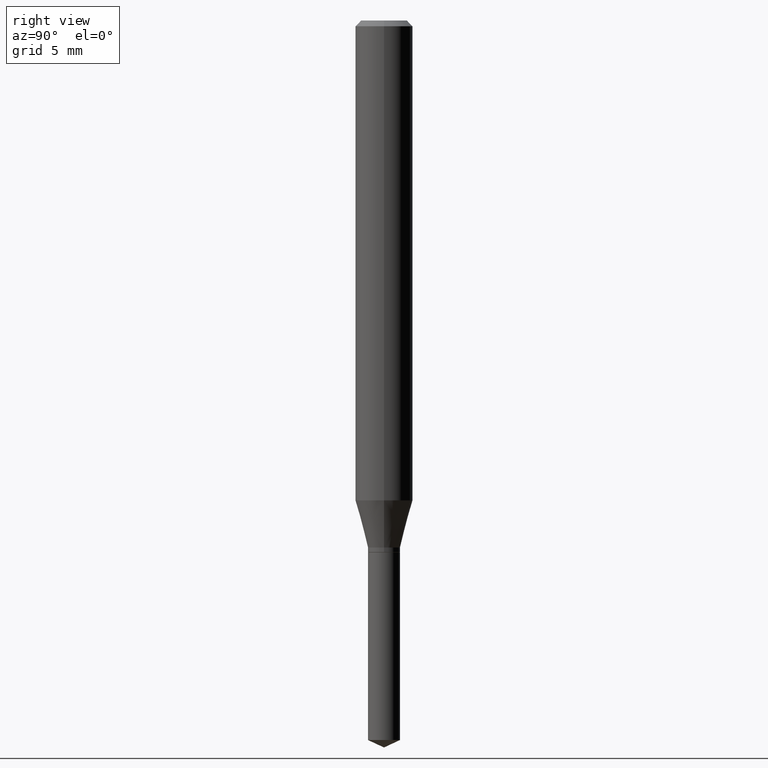
[diagram: clean part render]
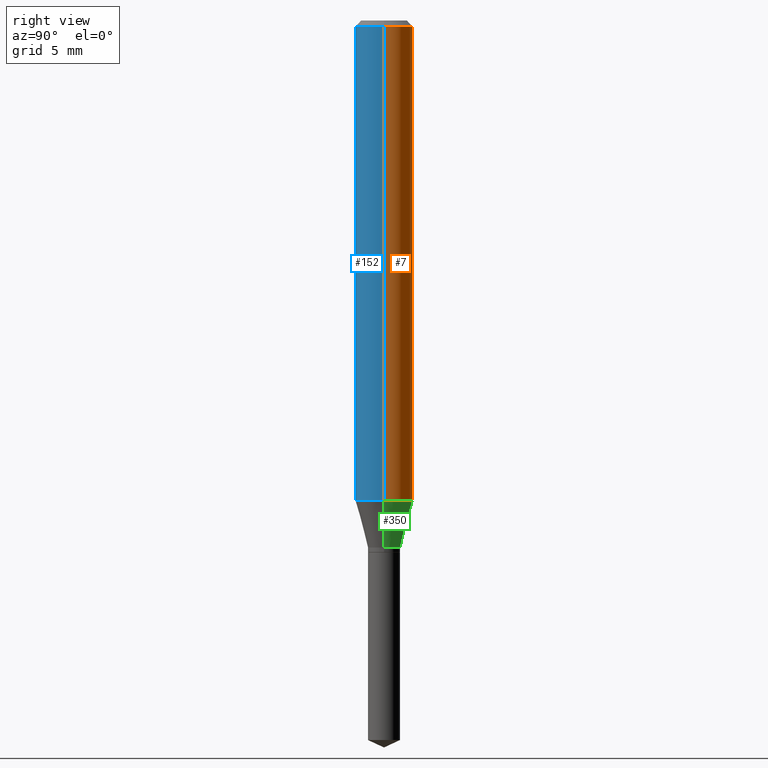
[diagram: same view with three faces highlighted in distinct colors, each labeled with its STEP entity id]
A machine part, right view with three faces highlighted in distinct colors.
Their STEP definitions:

[orange] entity #7 — the highlighted cylindrical surface (edge-blend (fillet) strip) has radius 1.4999 mm, axis along (-0, 0, 1).
#5 = CARTESIAN_POINT ( 'NONE',  ( -0.05905000000000006077, 4.195754854663395916E-16, -2.904631170795524694E-30 ) ) ;
#7 = ADVANCED_FACE ( 'NONE', ( #118 ), #80, .T. ) ;
#16 = CARTESIAN_POINT ( 'NONE',  ( 2.415063507530197396E-29, -3.448070630603002833E-15, -0.9875666790032088249 ) ) ;
#30 = CARTESIAN_POINT ( 'NONE',  ( -0.05904999999999999832, -1.325077027141029999E-15, -0.01181000000000007218 ) ) ;
#38 = LINE ( 'NONE', #5, #69 ) ;
#69 = VECTOR ( 'NONE', #424, 39.37007874015748143 ) ;
#71 = EDGE_LOOP ( 'NONE', ( #255, #432, #296, #396 ) ) ;
#73 = EDGE_CURVE ( 'NONE', #200, #377, #310, .T. ) ;
#80 = CYLINDRICAL_SURFACE ( 'NONE', #430, 0.05905000000000006077 ) ;
#106 = AXIS2_PLACEMENT_3D ( 'NONE', #426, #390, #196 ) ;
#109 = CARTESIAN_POINT ( 'NONE',  ( -0.05905000000000011628, -3.028495145136662552E-15, -0.9875666790032088249 ) ) ;
#118 = FACE_OUTER_BOUND ( 'NONE', #71, .T. ) ;
#168 = DIRECTION ( 'NONE',  ( -2.445468806185136597E-29, 3.491481338843145583E-15, 1.000000000000000000 ) ) ;
#173 = CARTESIAN_POINT ( 'NONE',  ( 0.05904999999999999832, -4.535783407291118600E-16, -0.01181000000000007218 ) ) ;
#178 = VECTOR ( 'NONE', #271, 39.37007874015748143 ) ;
#196 = DIRECTION ( 'NONE',  ( 1.000000000000000000, -6.982962677686266711E-15, 0.000000000000000000 ) ) ;
#200 = VERTEX_POINT ( 'NONE', #173 ) ;
#239 = AXIS2_PLACEMENT_3D ( 'NONE', #16, #168, #471 ) ;
#243 = EDGE_CURVE ( 'NONE', #380, #462, #384, .T. ) ;
#255 = ORIENTED_EDGE ( 'NONE', *, *, #243, .T. ) ;
#271 = DIRECTION ( 'NONE',  ( -2.445468806185136877E-29, 3.491481338843145188E-15, 1.000000000000000000 ) ) ;
#292 = CARTESIAN_POINT ( 'NONE',  ( 0.05905000000000011628, -3.860414576720377754E-15, -0.9875666790032088249 ) ) ;
#296 = ORIENTED_EDGE ( 'NONE', *, *, #73, .F. ) ;
#310 = CIRCLE ( 'NONE', #106, 0.05904999999999999832 ) ;
#352 = LINE ( 'NONE', #355, #178 ) ;
#355 = CARTESIAN_POINT ( 'NONE',  ( 0.05905000000000006077, -4.123439461173744764E-16, 2.879382386107503023E-30 ) ) ;
#377 = VERTEX_POINT ( 'NONE', #30 ) ;
#380 = VERTEX_POINT ( 'NONE', #292 ) ;
#384 = CIRCLE ( 'NONE', #239, 0.05905000000000011628 ) ;
#388 = DIRECTION ( 'NONE',  ( -2.445468806185136597E-29, 3.491481338843145583E-15, 1.000000000000000000 ) ) ;
#390 = DIRECTION ( 'NONE',  ( -2.445468806185136597E-29, 3.491481338843145583E-15, 1.000000000000000000 ) ) ;
#394 = DIRECTION ( 'NONE',  ( 1.000000000000000000, -6.982962677686266711E-15, 4.876176775795935793E-29 ) ) ;
#396 = ORIENTED_EDGE ( 'NONE', *, *, #481, .F. ) ;
#421 = CARTESIAN_POINT ( 'NONE',  ( 0.000000000000000000, 0.000000000000000000, 0.000000000000000000 ) ) ;
#424 = DIRECTION ( 'NONE',  ( -2.445468806185136877E-29, 3.491481338843145188E-15, 1.000000000000000000 ) ) ;
#426 = CARTESIAN_POINT ( 'NONE',  ( 2.888098660104664204E-31, -4.123439461173780263E-17, -0.01181000000000007218 ) ) ;
#430 = AXIS2_PLACEMENT_3D ( 'NONE', #421, #388, #394 ) ;
#432 = ORIENTED_EDGE ( 'NONE', *, *, #475, .T. ) ;
#462 = VERTEX_POINT ( 'NONE', #109 ) ;
#471 = DIRECTION ( 'NONE',  ( 1.000000000000000000, -6.982962677686266711E-15, 0.000000000000000000 ) ) ;
#475 = EDGE_CURVE ( 'NONE', #462, #377, #38, .T. ) ;
#481 = EDGE_CURVE ( 'NONE', #380, #200, #352, .T. ) ;

[blue] entity #152 — the highlighted cylindrical surface (edge-blend (fillet) strip) has radius 1.4999 mm, axis along (-0, 0, 1).
#4 = CIRCLE ( 'NONE', #400, 0.05905000000000011628 ) ;
#5 = CARTESIAN_POINT ( 'NONE',  ( -0.05905000000000006077, 4.195754854663395916E-16, -2.904631170795524694E-30 ) ) ;
#30 = CARTESIAN_POINT ( 'NONE',  ( -0.05904999999999999832, -1.325077027141029999E-15, -0.01181000000000007218 ) ) ;
#33 = ORIENTED_EDGE ( 'NONE', *, *, #457, .T. ) ;
#38 = LINE ( 'NONE', #5, #69 ) ;
#63 = ORIENTED_EDGE ( 'NONE', *, *, #317, .F. ) ;
#69 = VECTOR ( 'NONE', #424, 39.37007874015748143 ) ;
#87 = DIRECTION ( 'NONE',  ( -2.445468806185136597E-29, 3.491481338843145583E-15, 1.000000000000000000 ) ) ;
#96 = CARTESIAN_POINT ( 'NONE',  ( 0.000000000000000000, 0.000000000000000000, 0.000000000000000000 ) ) ;
#109 = CARTESIAN_POINT ( 'NONE',  ( -0.05905000000000011628, -3.028495145136662552E-15, -0.9875666790032088249 ) ) ;
#152 = ADVANCED_FACE ( 'NONE', ( #434 ), #433, .T. ) ;
#173 = CARTESIAN_POINT ( 'NONE',  ( 0.05904999999999999832, -4.535783407291118600E-16, -0.01181000000000007218 ) ) ;
#178 = VECTOR ( 'NONE', #271, 39.37007874015748143 ) ;
#185 = ORIENTED_EDGE ( 'NONE', *, *, #475, .F. ) ;
#200 = VERTEX_POINT ( 'NONE', #173 ) ;
#224 = CARTESIAN_POINT ( 'NONE',  ( 2.415063507530197396E-29, -3.448070630603002833E-15, -0.9875666790032088249 ) ) ;
#225 = ORIENTED_EDGE ( 'NONE', *, *, #481, .T. ) ;
#250 = DIRECTION ( 'NONE',  ( 1.000000000000000000, -6.982962677686266711E-15, 4.876176775795935793E-29 ) ) ;
#259 = AXIS2_PLACEMENT_3D ( 'NONE', #448, #408, #477 ) ;
#271 = DIRECTION ( 'NONE',  ( -2.445468806185136877E-29, 3.491481338843145188E-15, 1.000000000000000000 ) ) ;
#292 = CARTESIAN_POINT ( 'NONE',  ( 0.05905000000000011628, -3.860414576720377754E-15, -0.9875666790032088249 ) ) ;
#302 = CIRCLE ( 'NONE', #259, 0.05904999999999999832 ) ;
#317 = EDGE_CURVE ( 'NONE', #377, #200, #302, .T. ) ;
#352 = LINE ( 'NONE', #355, #178 ) ;
#355 = CARTESIAN_POINT ( 'NONE',  ( 0.05905000000000006077, -4.123439461173744764E-16, 2.879382386107503023E-30 ) ) ;
#362 = EDGE_LOOP ( 'NONE', ( #185, #33, #225, #63 ) ) ;
#377 = VERTEX_POINT ( 'NONE', #30 ) ;
#378 = DIRECTION ( 'NONE',  ( -2.445468806185136597E-29, 3.491481338843145583E-15, 1.000000000000000000 ) ) ;
#380 = VERTEX_POINT ( 'NONE', #292 ) ;
#400 = AXIS2_PLACEMENT_3D ( 'NONE', #224, #378, #454 ) ;
#408 = DIRECTION ( 'NONE',  ( -2.445468806185136597E-29, 3.491481338843145583E-15, 1.000000000000000000 ) ) ;
#422 = AXIS2_PLACEMENT_3D ( 'NONE', #96, #87, #250 ) ;
#424 = DIRECTION ( 'NONE',  ( -2.445468806185136877E-29, 3.491481338843145188E-15, 1.000000000000000000 ) ) ;
#433 = CYLINDRICAL_SURFACE ( 'NONE', #422, 0.05905000000000006077 ) ;
#434 = FACE_OUTER_BOUND ( 'NONE', #362, .T. ) ;
#448 = CARTESIAN_POINT ( 'NONE',  ( 2.888098660104664204E-31, -4.123439461173780263E-17, -0.01181000000000007218 ) ) ;
#454 = DIRECTION ( 'NONE',  ( 1.000000000000000000, -6.982962677686266711E-15, 0.000000000000000000 ) ) ;
#457 = EDGE_CURVE ( 'NONE', #462, #380, #4, .T. ) ;
#462 = VERTEX_POINT ( 'NONE', #109 ) ;
#475 = EDGE_CURVE ( 'NONE', #462, #377, #38, .T. ) ;
#477 = DIRECTION ( 'NONE',  ( 1.000000000000000000, -6.982962677686266711E-15, 0.000000000000000000 ) ) ;
#481 = EDGE_CURVE ( 'NONE', #380, #200, #352, .T. ) ;

[green] entity #350 — the highlighted conical surface has half-angle 15 deg.
#16 = CARTESIAN_POINT ( 'NONE',  ( 2.415063507530197396E-29, -3.448070630603002833E-15, -0.9875666790032088249 ) ) ;
#32 = CARTESIAN_POINT ( 'NONE',  ( 0.03305000000000000299, -4.017647576606806874E-15, -1.084600000000000009 ) ) ;
#34 = DIRECTION ( 'NONE',  ( -2.445468806185136597E-29, 3.491481338843145583E-15, 1.000000000000000000 ) ) ;
#53 = AXIS2_PLACEMENT_3D ( 'NONE', #139, #218, #294 ) ;
#72 = DIRECTION ( 'NONE',  ( 0.2588190451025211281, 1.565188264969622954E-15, 0.9659258262890679791 ) ) ;
#103 = CARTESIAN_POINT ( 'NONE',  ( 2.652355467188399034E-29, -3.786860660109275425E-15, -1.084600000000000009 ) ) ;
#109 = CARTESIAN_POINT ( 'NONE',  ( -0.05905000000000011628, -3.028495145136662552E-15, -0.9875666790032088249 ) ) ;
#128 = LINE ( 'NONE', #436, #383 ) ;
#134 = CARTESIAN_POINT ( 'NONE',  ( -0.03305000000000000299, -3.568436248233125067E-15, -1.084600000000000009 ) ) ;
#138 = AXIS2_PLACEMENT_3D ( 'NONE', #103, #34, #176 ) ;
#139 = CARTESIAN_POINT ( 'NONE',  ( 2.652355467188399034E-29, -3.786860660109275425E-15, -1.084600000000000009 ) ) ;
#163 = VERTEX_POINT ( 'NONE', #134 ) ;
#168 = DIRECTION ( 'NONE',  ( -2.445468806185136597E-29, 3.491481338843145583E-15, 1.000000000000000000 ) ) ;
#176 = DIRECTION ( 'NONE',  ( 1.000000000000000000, -6.982962677686269077E-15, 0.000000000000000000 ) ) ;
#183 = EDGE_LOOP ( 'NONE', ( #455, #337, #217, #409 ) ) ;
#217 = ORIENTED_EDGE ( 'NONE', *, *, #243, .F. ) ;
#218 = DIRECTION ( 'NONE',  ( -2.445468806185136597E-29, 3.491481338843145583E-15, 1.000000000000000000 ) ) ;
#231 = VECTOR ( 'NONE', #72, 39.37007874015748854 ) ;
#239 = AXIS2_PLACEMENT_3D ( 'NONE', #16, #168, #471 ) ;
#243 = EDGE_CURVE ( 'NONE', #380, #462, #384, .T. ) ;
#249 = EDGE_CURVE ( 'NONE', #163, #462, #128, .T. ) ;
#262 = LINE ( 'NONE', #418, #231 ) ;
#292 = CARTESIAN_POINT ( 'NONE',  ( 0.05905000000000011628, -3.860414576720377754E-15, -0.9875666790032088249 ) ) ;
#294 = DIRECTION ( 'NONE',  ( 1.000000000000000000, -6.982962677686269077E-15, 0.000000000000000000 ) ) ;
#299 = FACE_OUTER_BOUND ( 'NONE', #183, .T. ) ;
#300 = VERTEX_POINT ( 'NONE', #32 ) ;
#321 = CIRCLE ( 'NONE', #138, 0.03305000000000000299 ) ;
#331 = EDGE_CURVE ( 'NONE', #300, #163, #321, .T. ) ;
#337 = ORIENTED_EDGE ( 'NONE', *, *, #249, .T. ) ;
#350 = ADVANCED_FACE ( 'NONE', ( #299 ), #423, .T. ) ;
#380 = VERTEX_POINT ( 'NONE', #292 ) ;
#383 = VECTOR ( 'NONE', #438, 39.37007874015748854 ) ;
#384 = CIRCLE ( 'NONE', #239, 0.05905000000000011628 ) ;
#409 = ORIENTED_EDGE ( 'NONE', *, *, #464, .F. ) ;
#418 = CARTESIAN_POINT ( 'NONE',  ( 0.03305000000000000299, -4.017647576606806874E-15, -1.084600000000000009 ) ) ;
#423 = CONICAL_SURFACE ( 'NONE', #53, 0.03305000000000000299, 0.2617993877991498519 ) ;
#436 = CARTESIAN_POINT ( 'NONE',  ( -0.03305000000000000299, -3.552026285940562539E-15, -1.084600000000000009 ) ) ;
#438 = DIRECTION ( 'NONE',  ( -0.2588190451025211281, 5.211531920934547886E-15, 0.9659258262890679791 ) ) ;
#455 = ORIENTED_EDGE ( 'NONE', *, *, #331, .T. ) ;
#462 = VERTEX_POINT ( 'NONE', #109 ) ;
#464 = EDGE_CURVE ( 'NONE', #300, #380, #262, .T. ) ;
#471 = DIRECTION ( 'NONE',  ( 1.000000000000000000, -6.982962677686266711E-15, 0.000000000000000000 ) ) ;